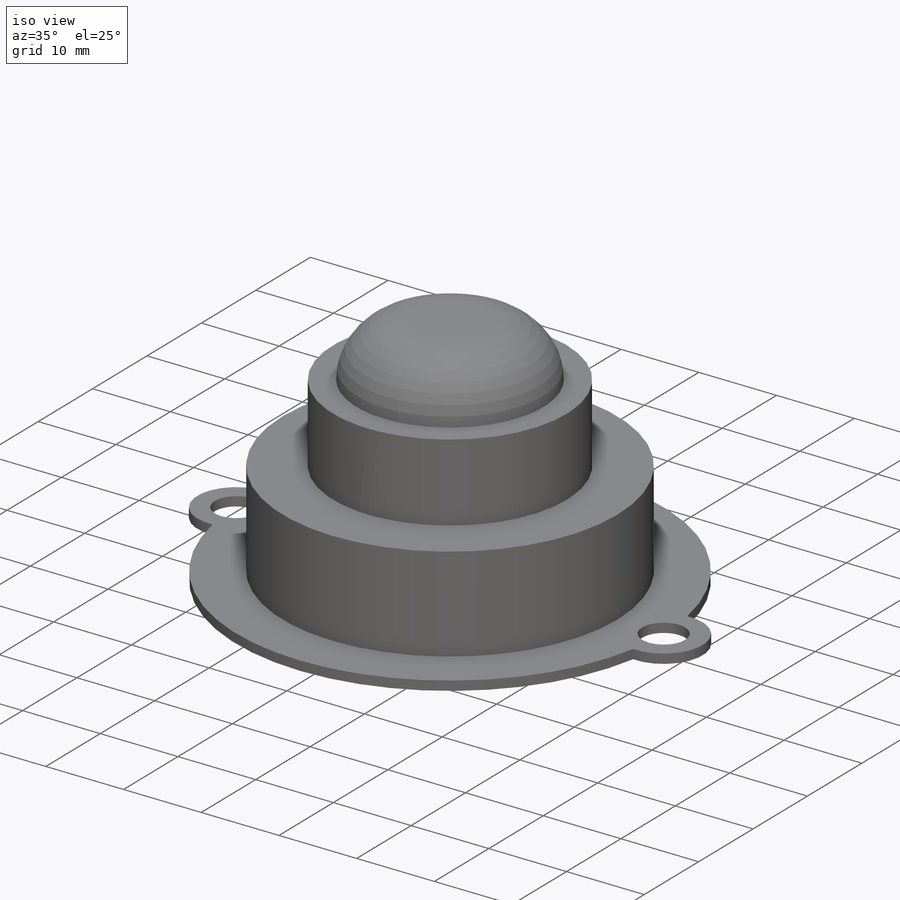
[diagram: iso view]
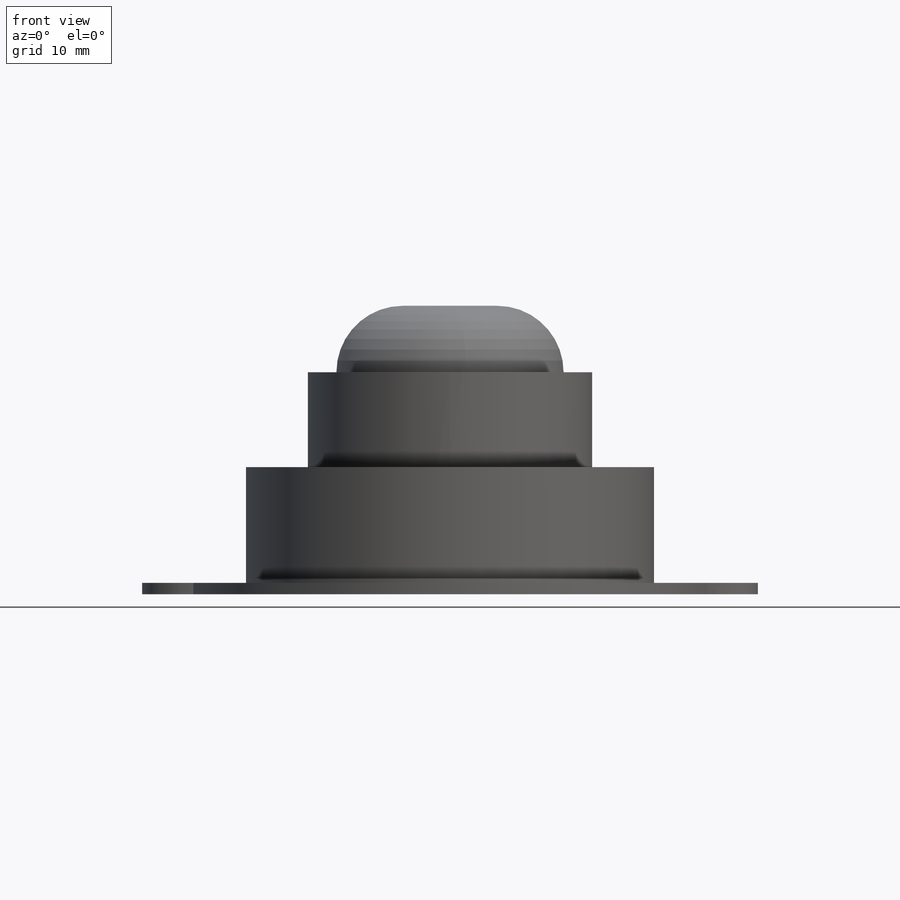
[diagram: front view]
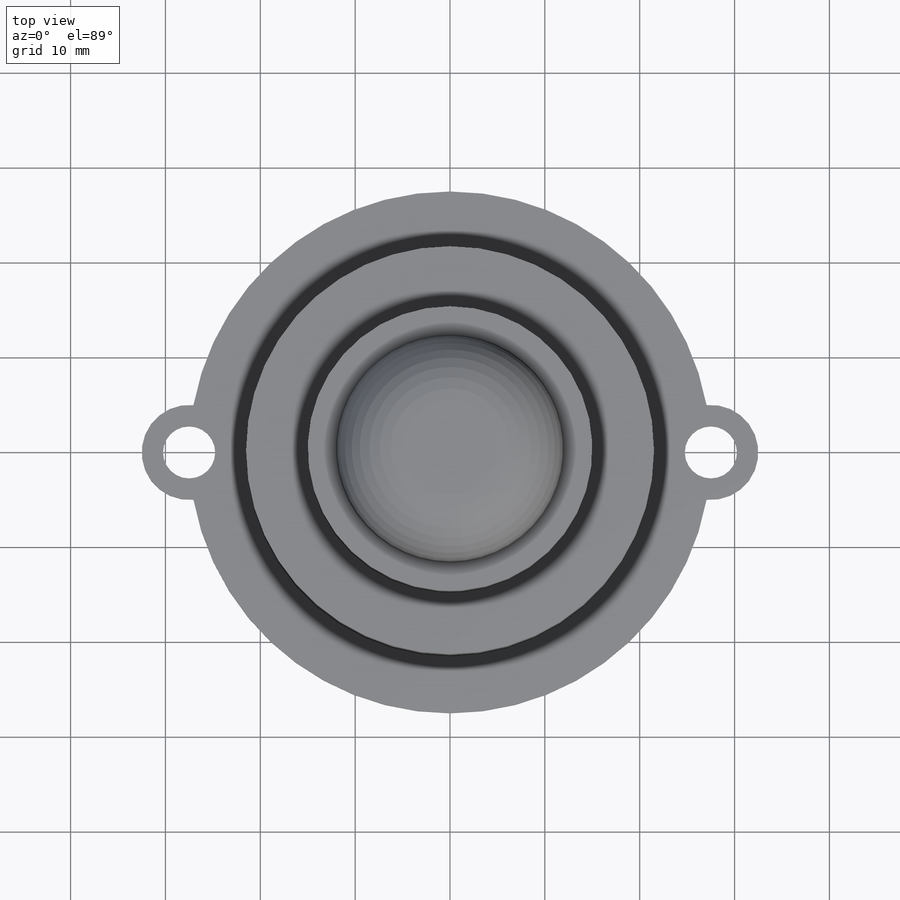
[diagram: top view]
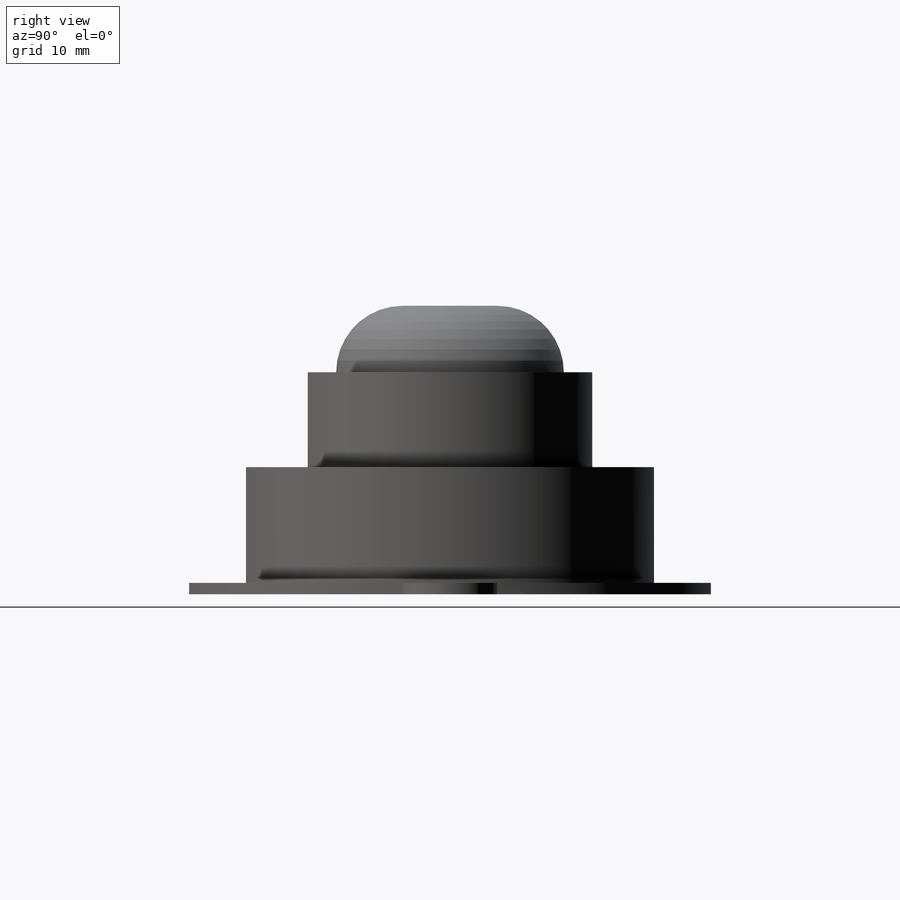
[diagram: right view]
SOLIDWORKS PART (.sldprt)
format: sldprt  version: not decoded by parser v0  size: 191,488 bytes
history: native  units: mm
features: sketch x4, extrude x4, material x1, fillet x1 (+13 scaffold rows collapsed)
feature tree (23):
  scaffold x13  (default folders/planes/origin — collapsed)
  material  "Material <not specified>"
  sketch  "Sketch1"  dims[D1=55.0mm D2=10.0mm D3=5.5mm]
  extrude  "Boss-Extrude1"  Depth=1.2mm
  sketch  "Sketch2"  dims[D1=15.0mm]
  extrude  "Boss-Extrude2"  Depth=12.2mm
  sketch  "Sketch3"  dims[D1=30.0mm]
  extrude  "Boss-Extrude3"  Depth=10mm
  sketch  "Sketch5"  dims[D1=9.0mm]
  extrude  "Boss-Extrude4"  Depth=7mm
  fillet  "Fillet1"  Radius=7mm
decode coverage: 9 of 9 modeling features carry decoded parameters
note: suppression state not decoded; provenance and decode notes live in map.json
